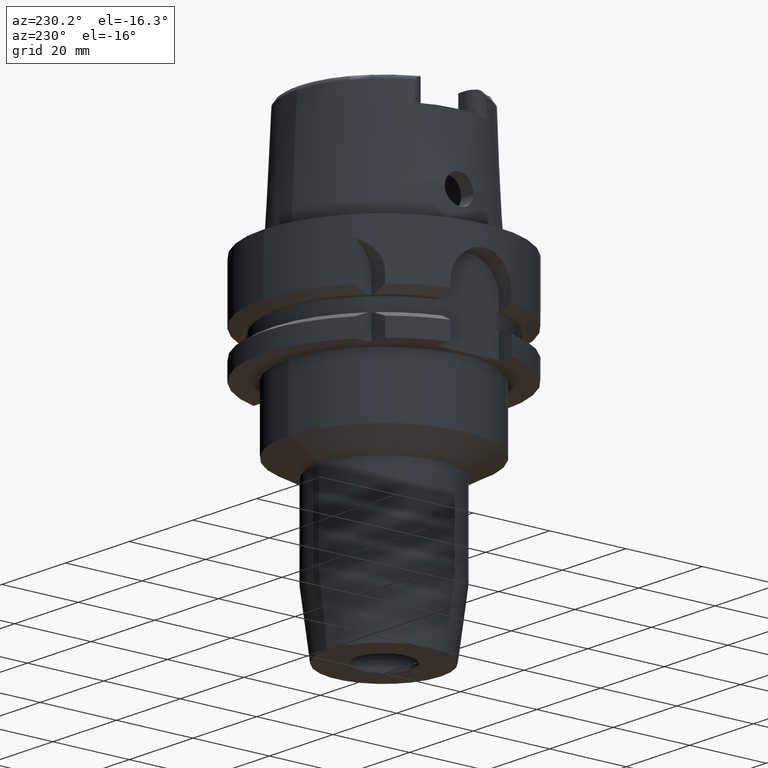
[diagram: clean part render]
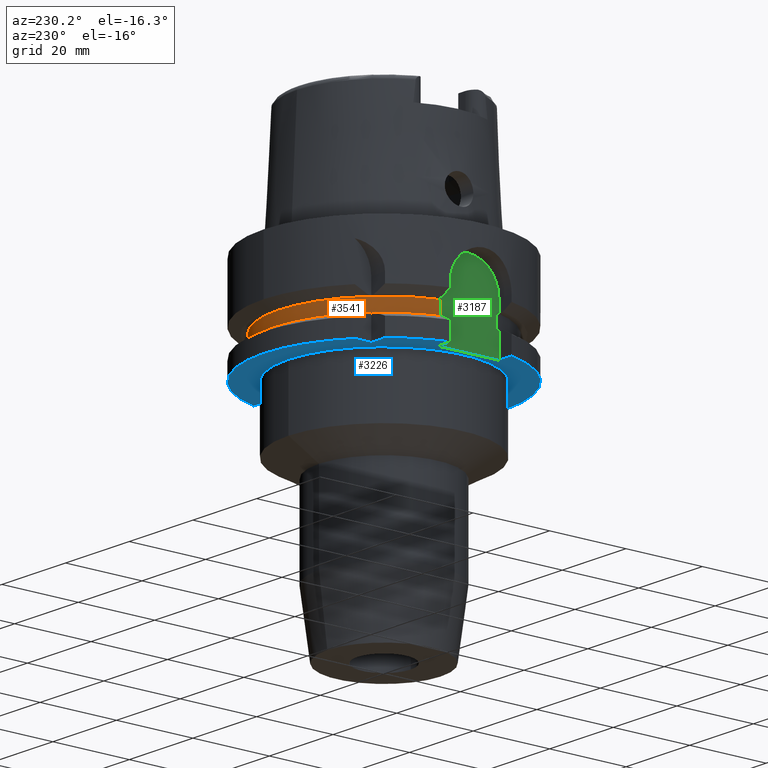
[diagram: same view with three faces highlighted in distinct colors, each labeled with its STEP entity id]
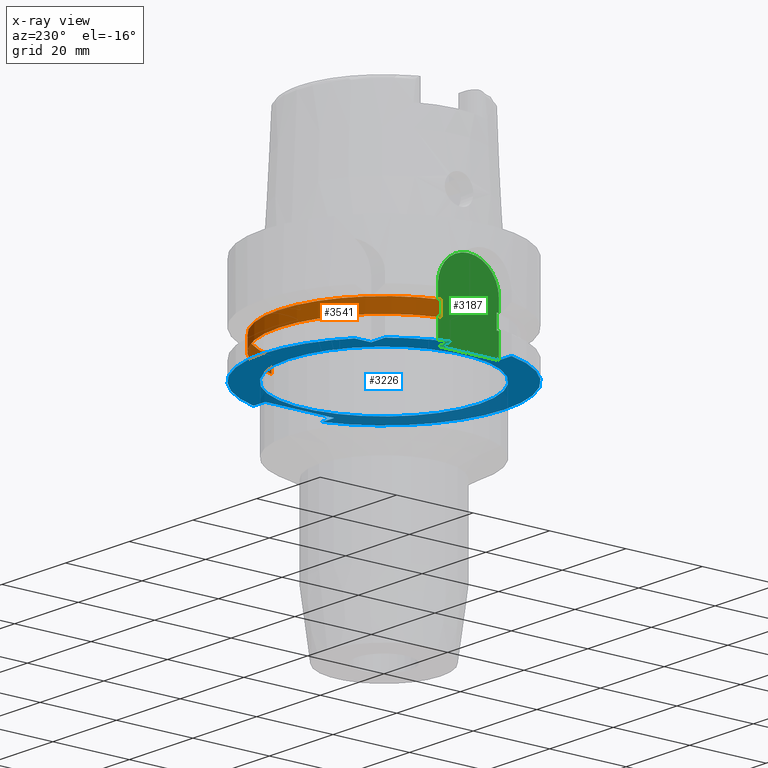
[diagram: x-ray of the same camera — body ghosted, the three highlighted faces saturated]
A machine part, auxiliary view with three faces highlighted in distinct colors.
The next image is the same camera in x-ray (body ghosted, the three faces saturated) — at least one of them is partly hidden behind the body in this view.
Their STEP definitions:

[orange] entity #3541 — the highlighted cylindrical surface (partial cylindrical patch) has radius 27.5 mm, axis along (0, 0, 1).
#764=CARTESIAN_POINT('',(0.E0,0.E0,-1.6125E1));
#765=DIRECTION('',(0.E0,0.E0,-1.E0));
#766=DIRECTION('',(-9.636363636364E-1,2.672170628491E-1,0.E0));
#767=AXIS2_PLACEMENT_3D('',#764,#765,#766);
#772=CARTESIAN_POINT('',(0.E0,0.E0,-1.6125E1));
#773=DIRECTION('',(0.E0,0.E0,-1.E0));
#774=DIRECTION('',(0.E0,1.E0,0.E0));
#775=AXIS2_PLACEMENT_3D('',#772,#773,#774);
#1466=DIRECTION('',(0.E0,0.E0,-1.E0));
#1467=VECTOR('',#1466,3.75E0);
#1468=CARTESIAN_POINT('',(-2.65E1,7.348469228350E0,-1.6125E1));
#1469=LINE('',#1468,#1467);
#1473=DIRECTION('',(0.E0,0.E0,1.E0));
#1474=VECTOR('',#1473,3.75E0);
#1475=CARTESIAN_POINT('',(2.65E1,7.348469228350E0,-1.9875E1));
#1476=LINE('',#1475,#1474);
#1503=CARTESIAN_POINT('',(0.E0,0.E0,-1.9875E1));
#1504=DIRECTION('',(0.E0,0.E0,1.E0));
#1505=DIRECTION('',(9.636363636364E-1,2.672170628491E-1,0.E0));
#1506=AXIS2_PLACEMENT_3D('',#1503,#1504,#1505);
#1511=CARTESIAN_POINT('',(0.E0,0.E0,-1.9875E1));
#1512=DIRECTION('',(0.E0,0.E0,1.E0));
#1513=DIRECTION('',(0.E0,1.E0,0.E0));
#1514=AXIS2_PLACEMENT_3D('',#1511,#1512,#1513);
#2502=CARTESIAN_POINT('',(-2.65E1,7.348469228350E0,-1.9875E1));
#2503=VERTEX_POINT('',#2502);
#2504=CARTESIAN_POINT('',(-2.65E1,7.348469228350E0,-1.6125E1));
#2505=VERTEX_POINT('',#2504);
#2538=CARTESIAN_POINT('',(2.65E1,7.348469228350E0,-1.9875E1));
#2539=VERTEX_POINT('',#2538);
#2540=CARTESIAN_POINT('',(0.E0,2.75E1,-1.9875E1));
#2541=VERTEX_POINT('',#2540);
#2542=CARTESIAN_POINT('',(2.65E1,7.348469228350E0,-1.6125E1));
#2543=VERTEX_POINT('',#2542);
#2544=CARTESIAN_POINT('',(0.E0,2.75E1,-1.6125E1));
#2545=VERTEX_POINT('',#2544);
#3526=CARTESIAN_POINT('',(0.E0,0.E0,-9.085E1));
#3527=DIRECTION('',(0.E0,0.E0,1.E0));
#3528=DIRECTION('',(0.E0,1.E0,0.E0));
#3529=AXIS2_PLACEMENT_3D('',#3526,#3527,#3528);
#3530=CYLINDRICAL_SURFACE('',#3529,2.75E1);
#3531=ORIENTED_EDGE('',*,*,#3171,.T.);
#3533=ORIENTED_EDGE('',*,*,#3532,.F.);
#3535=ORIENTED_EDGE('',*,*,#3534,.F.);
#3536=ORIENTED_EDGE('',*,*,#3301,.T.);
#3537=ORIENTED_EDGE('',*,*,#3038,.F.);
#3538=ORIENTED_EDGE('',*,*,#3036,.F.);
#3539=EDGE_LOOP('',(#3531,#3533,#3535,#3536,#3537,#3538));
#3540=FACE_OUTER_BOUND('',#3539,.F.);
#768=CIRCLE('',#767,2.75E1);
#776=CIRCLE('',#775,2.75E1);
#1507=CIRCLE('',#1506,2.75E1);
#1515=CIRCLE('',#1514,2.75E1);
#3036=EDGE_CURVE('',#2505,#2545,#768,.T.);
#3038=EDGE_CURVE('',#2545,#2543,#776,.T.);
#3171=EDGE_CURVE('',#2505,#2503,#1469,.T.);
#3301=EDGE_CURVE('',#2539,#2543,#1476,.T.);
#3532=EDGE_CURVE('',#2541,#2503,#1515,.T.);
#3534=EDGE_CURVE('',#2539,#2541,#1507,.T.);
#3541=ADVANCED_FACE('',(#3540),#3530,.T.);

[blue] entity #3226 — the highlighted planar face has unit normal (0, 0, 1).
#955=DIRECTION('',(0.E0,1.E0,0.E0));
#956=VECTOR('',#955,1.6E1);
#957=CARTESIAN_POINT('',(-2.65E1,-8.E0,-2.6E1));
#958=LINE('',#957,#956);
#992=DIRECTION('',(-1.E0,-1.540316790609E-13,0.E0));
#993=VECTOR('',#992,4.336187047278E0);
#994=CARTESIAN_POINT('',(-2.E1,2.E1,-2.6E1));
#995=LINE('',#994,#993);
#999=CARTESIAN_POINT('',(0.E0,0.E0,-2.6E1));
#1000=DIRECTION('',(0.E0,0.E0,1.E0));
#1001=DIRECTION('',(-7.725773665802E-1,6.349206349206E-1,0.E0));
#1002=AXIS2_PLACEMENT_3D('',#999,#1000,#1001);
#1007=DIRECTION('',(-1.E0,-8.686570378871E-14,0.E0));
#1008=VECTOR('',#1007,3.967195473163E0);
#1009=CARTESIAN_POINT('',(-2.65E1,-8.E0,-2.6E1));
#1010=LINE('',#1009,#1008);
#1014=CARTESIAN_POINT('',(0.E0,0.E0,-2.6E1));
#1015=DIRECTION('',(0.E0,0.E0,1.E0));
#1016=DIRECTION('',(-9.672125547036E-1,-2.539682539683E-1,0.E0));
#1017=AXIS2_PLACEMENT_3D('',#1014,#1015,#1016);
#1022=CARTESIAN_POINT('',(0.E0,0.E0,-2.6E1));
#1023=DIRECTION('',(0.E0,0.E0,1.E0));
#1024=DIRECTION('',(0.E0,-1.E0,0.E0));
#1025=AXIS2_PLACEMENT_3D('',#1022,#1023,#1024);
#1030=DIRECTION('',(0.E0,1.E0,0.E0));
#1031=VECTOR('',#1030,1.8E1);
#1032=CARTESIAN_POINT('',(2.65E1,-9.E0,-2.6E1));
#1033=LINE('',#1032,#1031);
#1037=DIRECTION('',(1.E0,-7.275179563200E-14,0.E0));
#1038=VECTOR('',#1037,3.686917696248E0);
#1039=CARTESIAN_POINT('',(2.65E1,9.E0,-2.6E1));
#1040=LINE('',#1039,#1038);
#1044=CARTESIAN_POINT('',(0.E0,0.E0,-2.6E1));
#1045=DIRECTION('',(0.E0,0.E0,1.E0));
#1046=DIRECTION('',(9.583148474999E-1,2.857142857143E-1,0.E0));
#1047=AXIS2_PLACEMENT_3D('',#1044,#1045,#1046);
#1052=CARTESIAN_POINT('',(0.E0,0.E0,-2.6E1));
#1053=DIRECTION('',(0.E0,0.E0,1.E0));
#1054=DIRECTION('',(0.E0,1.E0,0.E0));
#1055=AXIS2_PLACEMENT_3D('',#1052,#1053,#1054);
#1060=CARTESIAN_POINT('',(0.E0,0.E0,-2.6E1));
#1061=DIRECTION('',(0.E0,0.E0,-1.E0));
#1062=DIRECTION('',(0.E0,-1.E0,0.E0));
#1063=AXIS2_PLACEMENT_3D('',#1060,#1061,#1062);
#1068=CARTESIAN_POINT('',(0.E0,0.E0,-2.6E1));
#1069=DIRECTION('',(0.E0,0.E0,-1.E0));
#1070=DIRECTION('',(0.E0,1.E0,0.E0));
#1071=AXIS2_PLACEMENT_3D('',#1068,#1069,#1070);
#1076=DIRECTION('',(1.556703139446E-13,1.E0,0.E0));
#1077=VECTOR('',#1076,4.336187047278E0);
#1078=CARTESIAN_POINT('',(-2.E1,2.E1,-2.6E1));
#1079=LINE('',#1078,#1077);
#1179=DIRECTION('',(1.E0,6.889739586341E-14,0.E0));
#1180=VECTOR('',#1179,3.686917696248E0);
#1181=CARTESIAN_POINT('',(2.65E1,-9.E0,-2.6E1));
#1182=LINE('',#1181,#1180);
#1567=DIRECTION('',(-1.E0,8.776122650818E-14,0.E0));
#1568=VECTOR('',#1567,3.967195473163E0);
#1569=CARTESIAN_POINT('',(-2.65E1,8.E0,-2.6E1));
#1570=LINE('',#1569,#1568);
#2428=CARTESIAN_POINT('',(0.E0,2.5E1,-2.6E1));
#2429=VERTEX_POINT('',#2428);
#2430=CARTESIAN_POINT('',(0.E0,-2.5E1,-2.6E1));
#2431=VERTEX_POINT('',#2430);
#2432=CARTESIAN_POINT('',(-2.E1,2.E1,-2.6E1));
#2433=CARTESIAN_POINT('',(-2.E1,2.433618704728E1,-2.6E1));
#2434=VERTEX_POINT('',#2432);
#2435=VERTEX_POINT('',#2433);
#2436=CARTESIAN_POINT('',(-2.433618704728E1,2.E1,-2.6E1));
#2437=VERTEX_POINT('',#2436);
#2438=CARTESIAN_POINT('',(-3.046719547316E1,8.E0,-2.6E1));
#2439=VERTEX_POINT('',#2438);
#2440=CARTESIAN_POINT('',(-2.65E1,8.E0,-2.6E1));
#2441=VERTEX_POINT('',#2440);
#2442=CARTESIAN_POINT('',(-2.65E1,-8.E0,-2.6E1));
#2443=VERTEX_POINT('',#2442);
#2444=CARTESIAN_POINT('',(-3.046719547316E1,-8.E0,-2.6E1));
#2445=VERTEX_POINT('',#2444);
#2446=CARTESIAN_POINT('',(-1.569039500652E-14,-3.15E1,-2.6E1));
#2447=CARTESIAN_POINT('',(3.018691769625E1,-9.E0,-2.6E1));
#2448=VERTEX_POINT('',#2446);
#2449=VERTEX_POINT('',#2447);
#2450=CARTESIAN_POINT('',(2.65E1,-9.E0,-2.6E1));
#2451=VERTEX_POINT('',#2450);
#2452=CARTESIAN_POINT('',(2.65E1,9.E0,-2.6E1));
#2453=VERTEX_POINT('',#2452);
#2454=CARTESIAN_POINT('',(3.018691769625E1,9.E0,-2.6E1));
#2455=VERTEX_POINT('',#2454);
#2456=CARTESIAN_POINT('',(1.065814103640E-14,3.15E1,-2.6E1));
#2457=VERTEX_POINT('',#2456);
#3188=CARTESIAN_POINT('',(0.E0,0.E0,-2.6E1));
#3189=DIRECTION('',(0.E0,0.E0,1.E0));
#3190=DIRECTION('',(0.E0,1.E0,0.E0));
#3191=AXIS2_PLACEMENT_3D('',#3188,#3189,#3190);
#3192=PLANE('',#3191);
#3194=ORIENTED_EDGE('',*,*,#3193,.F.);
#3196=ORIENTED_EDGE('',*,*,#3195,.T.);
#3198=ORIENTED_EDGE('',*,*,#3197,.T.);
#3200=ORIENTED_EDGE('',*,*,#3199,.F.);
#3201=ORIENTED_EDGE('',*,*,#3165,.F.);
#3203=ORIENTED_EDGE('',*,*,#3202,.T.);
#3205=ORIENTED_EDGE('',*,*,#3204,.T.);
#3207=ORIENTED_EDGE('',*,*,#3206,.T.);
#3209=ORIENTED_EDGE('',*,*,#3208,.F.);
#3211=ORIENTED_EDGE('',*,*,#3210,.T.);
#3213=ORIENTED_EDGE('',*,*,#3212,.T.);
#3215=ORIENTED_EDGE('',*,*,#3214,.T.);
#3217=ORIENTED_EDGE('',*,*,#3216,.T.);
#3218=EDGE_LOOP('',(#3194,#3196,#3198,#3200,#3201,#3203,#3205,#3207,#3209,#3211,
#3213,#3215,#3217));
#3219=FACE_OUTER_BOUND('',#3218,.F.);
#3221=ORIENTED_EDGE('',*,*,#3220,.T.);
#3223=ORIENTED_EDGE('',*,*,#3222,.T.);
#3224=EDGE_LOOP('',(#3221,#3223));
#3225=FACE_BOUND('',#3224,.F.);
#1003=CIRCLE('',#1002,3.15E1);
#1018=CIRCLE('',#1017,3.15E1);
#1026=CIRCLE('',#1025,3.15E1);
#1048=CIRCLE('',#1047,3.15E1);
#1056=CIRCLE('',#1055,3.15E1);
#1064=CIRCLE('',#1063,2.5E1);
#1072=CIRCLE('',#1071,2.5E1);
#3165=EDGE_CURVE('',#2443,#2441,#958,.T.);
#3193=EDGE_CURVE('',#2434,#2435,#1079,.T.);
#3195=EDGE_CURVE('',#2434,#2437,#995,.T.);
#3197=EDGE_CURVE('',#2437,#2439,#1003,.T.);
#3199=EDGE_CURVE('',#2441,#2439,#1570,.T.);
#3202=EDGE_CURVE('',#2443,#2445,#1010,.T.);
#3204=EDGE_CURVE('',#2445,#2448,#1018,.T.);
#3206=EDGE_CURVE('',#2448,#2449,#1026,.T.);
#3208=EDGE_CURVE('',#2451,#2449,#1182,.T.);
#3210=EDGE_CURVE('',#2451,#2453,#1033,.T.);
#3212=EDGE_CURVE('',#2453,#2455,#1040,.T.);
#3214=EDGE_CURVE('',#2455,#2457,#1048,.T.);
#3216=EDGE_CURVE('',#2457,#2435,#1056,.T.);
#3220=EDGE_CURVE('',#2431,#2429,#1064,.T.);
#3222=EDGE_CURVE('',#2429,#2431,#1072,.T.);
#3226=ADVANCED_FACE('',(#3219,#3225),#3192,.F.);

[green] entity #3187 — the highlighted planar face has unit normal (1, 0, 0).
#859=DIRECTION('',(0.E0,0.E0,-1.E0));
#860=VECTOR('',#859,3.125E0);
#861=CARTESIAN_POINT('',(-2.65E1,8.E0,-1.3E1));
#862=LINE('',#861,#860);
#902=DIRECTION('',(0.E0,0.E0,1.E0));
#903=VECTOR('',#902,3.125E0);
#904=CARTESIAN_POINT('',(-2.65E1,-8.E0,-1.6125E1));
#905=LINE('',#904,#903);
#955=DIRECTION('',(0.E0,1.E0,0.E0));
#956=VECTOR('',#955,1.6E1);
#957=CARTESIAN_POINT('',(-2.65E1,-8.E0,-2.6E1));
#958=LINE('',#957,#956);
#962=DIRECTION('',(-5.998158823386E-14,1.E0,0.E0));
#963=VECTOR('',#962,6.515307716501E-1);
#964=CARTESIAN_POINT('',(-2.65E1,7.348469228350E0,-1.6125E1));
#965=LINE('',#964,#963);
#969=CARTESIAN_POINT('',(-2.65E1,0.E0,-1.3E1));
#970=DIRECTION('',(1.E0,0.E0,0.E0));
#971=DIRECTION('',(0.E0,1.E0,0.E0));
#972=AXIS2_PLACEMENT_3D('',#969,#970,#971);
#977=CARTESIAN_POINT('',(-2.65E1,0.E0,-1.3E1));
#978=DIRECTION('',(1.E0,0.E0,0.E0));
#979=DIRECTION('',(0.E0,0.E0,1.E0));
#980=AXIS2_PLACEMENT_3D('',#977,#978,#979);
#985=DIRECTION('',(5.998158823386E-14,1.E0,0.E0));
#986=VECTOR('',#985,6.515307716501E-1);
#987=CARTESIAN_POINT('',(-2.65E1,-8.E0,-1.6125E1));
#988=LINE('',#987,#986);
#1210=DIRECTION('',(0.E0,0.E0,1.E0));
#1211=VECTOR('',#1210,6.125E0);
#1212=CARTESIAN_POINT('',(-2.65E1,-8.E0,-2.6E1));
#1213=LINE('',#1212,#1211);
#1234=DIRECTION('',(5.998158823386E-14,1.E0,0.E0));
#1235=VECTOR('',#1234,6.515307716501E-1);
#1236=CARTESIAN_POINT('',(-2.65E1,-8.E0,-1.9875E1));
#1237=LINE('',#1236,#1235);
#1280=DIRECTION('',(0.E0,0.E0,1.E0));
#1281=VECTOR('',#1280,3.75E0);
#1282=CARTESIAN_POINT('',(-2.65E1,-7.348469228350E0,-1.9875E1));
#1283=LINE('',#1282,#1281);
#1466=DIRECTION('',(0.E0,0.E0,-1.E0));
#1467=VECTOR('',#1466,3.75E0);
#1468=CARTESIAN_POINT('',(-2.65E1,7.348469228350E0,-1.6125E1));
#1469=LINE('',#1468,#1467);
#1519=DIRECTION('',(-5.998158823386E-14,1.E0,0.E0));
#1520=VECTOR('',#1519,6.515307716501E-1);
#1521=CARTESIAN_POINT('',(-2.65E1,7.348469228350E0,-1.9875E1));
#1522=LINE('',#1521,#1520);
#1584=DIRECTION('',(0.E0,0.E0,-1.E0));
#1585=VECTOR('',#1584,6.125E0);
#1586=CARTESIAN_POINT('',(-2.65E1,8.E0,-1.9875E1));
#1587=LINE('',#1586,#1585);
#2440=CARTESIAN_POINT('',(-2.65E1,8.E0,-2.6E1));
#2441=VERTEX_POINT('',#2440);
#2442=CARTESIAN_POINT('',(-2.65E1,-8.E0,-2.6E1));
#2443=VERTEX_POINT('',#2442);
#2486=CARTESIAN_POINT('',(-2.65E1,-8.E0,-1.9875E1));
#2487=VERTEX_POINT('',#2486);
#2490=CARTESIAN_POINT('',(-2.65E1,-8.E0,-1.6125E1));
#2492=VERTEX_POINT('',#2490);
#2494=CARTESIAN_POINT('',(-2.65E1,-8.E0,-1.3E1));
#2495=VERTEX_POINT('',#2494);
#2500=CARTESIAN_POINT('',(-2.65E1,8.E0,-1.9875E1));
#2501=VERTEX_POINT('',#2500);
#2502=CARTESIAN_POINT('',(-2.65E1,7.348469228350E0,-1.9875E1));
#2503=VERTEX_POINT('',#2502);
#2504=CARTESIAN_POINT('',(-2.65E1,7.348469228350E0,-1.6125E1));
#2505=VERTEX_POINT('',#2504);
#2506=CARTESIAN_POINT('',(-2.65E1,8.E0,-1.6125E1));
#2507=VERTEX_POINT('',#2506);
#2508=CARTESIAN_POINT('',(-2.65E1,8.E0,-1.3E1));
#2509=VERTEX_POINT('',#2508);
#2510=CARTESIAN_POINT('',(-2.65E1,0.E0,-5.E0));
#2511=VERTEX_POINT('',#2510);
#2512=CARTESIAN_POINT('',(-2.65E1,-7.348469228350E0,-1.6125E1));
#2513=VERTEX_POINT('',#2512);
#2514=CARTESIAN_POINT('',(-2.65E1,-7.348469228350E0,-1.9875E1));
#2515=VERTEX_POINT('',#2514);
#3160=CARTESIAN_POINT('',(-2.65E1,0.E0,0.E0));
#3161=DIRECTION('',(1.E0,0.E0,0.E0));
#3162=DIRECTION('',(0.E0,0.E0,1.E0));
#3163=AXIS2_PLACEMENT_3D('',#3160,#3161,#3162);
#3164=PLANE('',#3163);
#3166=ORIENTED_EDGE('',*,*,#3165,.T.);
#3168=ORIENTED_EDGE('',*,*,#3167,.F.);
#3170=ORIENTED_EDGE('',*,*,#3169,.F.);
#3172=ORIENTED_EDGE('',*,*,#3171,.F.);
#3173=ORIENTED_EDGE('',*,*,#3034,.T.);
#3174=ORIENTED_EDGE('',*,*,#3100,.F.);
#3175=ORIENTED_EDGE('',*,*,#3115,.T.);
#3176=ORIENTED_EDGE('',*,*,#3113,.T.);
#3177=ORIENTED_EDGE('',*,*,#3128,.F.);
#3178=ORIENTED_EDGE('',*,*,#3142,.T.);
#3180=ORIENTED_EDGE('',*,*,#3179,.F.);
#3182=ORIENTED_EDGE('',*,*,#3181,.F.);
#3184=ORIENTED_EDGE('',*,*,#3183,.F.);
#3185=EDGE_LOOP('',(#3166,#3168,#3170,#3172,#3173,#3174,#3175,#3176,#3177,#3178,
#3180,#3182,#3184));
#3186=FACE_OUTER_BOUND('',#3185,.F.);
#973=CIRCLE('',#972,8.E0);
#981=CIRCLE('',#980,8.E0);
#3034=EDGE_CURVE('',#2505,#2507,#965,.T.);
#3100=EDGE_CURVE('',#2509,#2507,#862,.T.);
#3113=EDGE_CURVE('',#2511,#2495,#981,.T.);
#3115=EDGE_CURVE('',#2509,#2511,#973,.T.);
#3128=EDGE_CURVE('',#2492,#2495,#905,.T.);
#3142=EDGE_CURVE('',#2492,#2513,#988,.T.);
#3165=EDGE_CURVE('',#2443,#2441,#958,.T.);
#3167=EDGE_CURVE('',#2501,#2441,#1587,.T.);
#3169=EDGE_CURVE('',#2503,#2501,#1522,.T.);
#3171=EDGE_CURVE('',#2505,#2503,#1469,.T.);
#3179=EDGE_CURVE('',#2515,#2513,#1283,.T.);
#3181=EDGE_CURVE('',#2487,#2515,#1237,.T.);
#3183=EDGE_CURVE('',#2443,#2487,#1213,.T.);
#3187=ADVANCED_FACE('',(#3186),#3164,.F.);